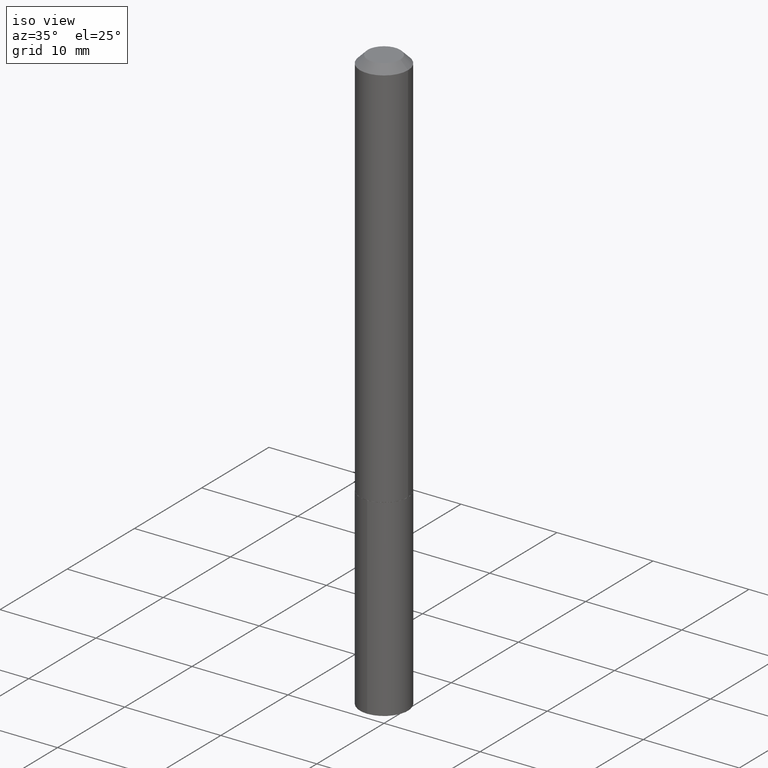
[diagram: clean part render]
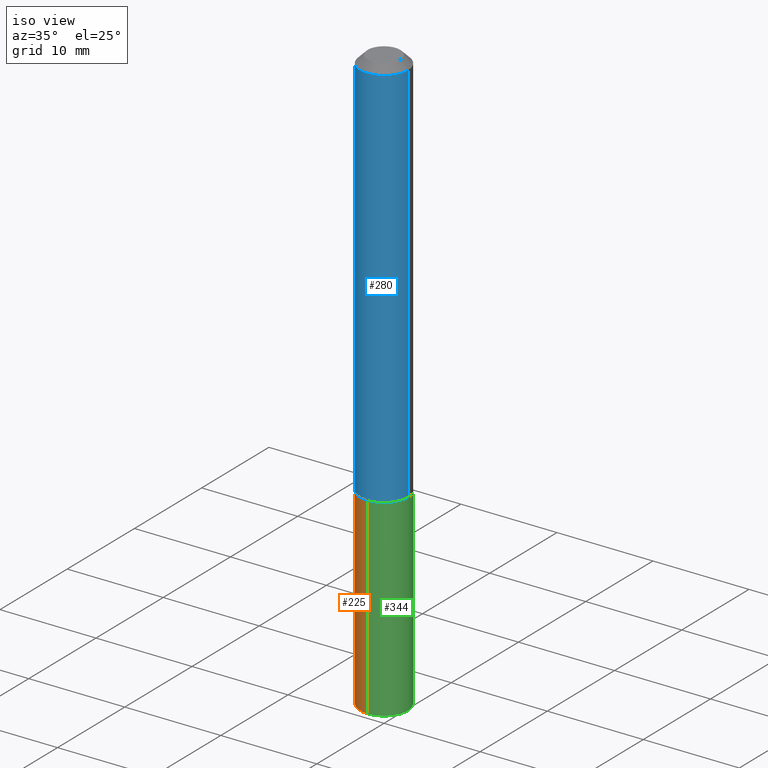
[diagram: same view with three faces highlighted in distinct colors, each labeled with its STEP entity id]
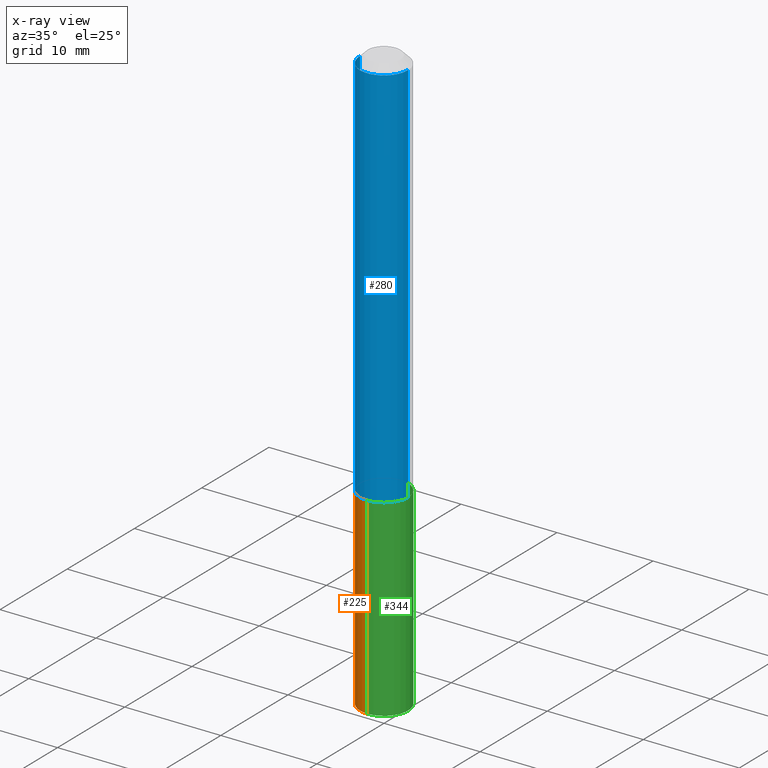
[diagram: x-ray of the same camera — body ghosted, the three highlighted faces saturated]
A machine part, iso view with three faces highlighted in distinct colors.
The next image is the same camera in x-ray (body ghosted, the three faces saturated) — at least one of them is partly hidden behind the body in this view.
Their STEP definitions:

[orange] entity #225 — the highlighted cylindrical surface (edge-blend (fillet) strip) has radius 2.5006 mm, axis along (-0, 0, 1).
#10 = ORIENTED_EDGE ( 'NONE', *, *, #339, .T. ) ;
#25 = DIRECTION ( 'NONE',  ( -2.446042122429912463E-29, 3.490660317349492585E-15, 1.000000000000000000 ) ) ;
#28 = CARTESIAN_POINT ( 'NONE',  ( -6.874726756181734128E-16, -0.09845000000000563023, -1.614199999999999635 ) ) ;
#30 = DIRECTION ( 'NONE',  ( -6.982962677686265922E-15, -1.000000000000000000, 2.774858297271979165E-15 ) ) ;
#31 = LINE ( 'NONE', #28, #279 ) ;
#60 = CYLINDRICAL_SURFACE ( 'NONE', #66, 0.09844999999999999585 ) ;
#66 = AXIS2_PLACEMENT_3D ( 'NONE', #300, #264, #206 ) ;
#82 = VERTEX_POINT ( 'NONE', #183 ) ;
#84 = EDGE_CURVE ( 'NONE', #229, #105, #174, .T. ) ;
#97 = DIRECTION ( 'NONE',  ( -2.446042122429912463E-29, 3.490660317349492979E-15, 1.000000000000000000 ) ) ;
#98 = CARTESIAN_POINT ( 'NONE',  ( 5.881970061236980802E-29, -8.396597685671335252E-15, -2.405067130436492562 ) ) ;
#102 = ORIENTED_EDGE ( 'NONE', *, *, #193, .F. ) ;
#105 = VERTEX_POINT ( 'NONE', #388 ) ;
#116 = VERTEX_POINT ( 'NONE', #215 ) ;
#152 = AXIS2_PLACEMENT_3D ( 'NONE', #98, #305, #30 ) ;
#158 = DIRECTION ( 'NONE',  ( -6.982962677686265922E-15, -1.000000000000000000, 2.774858297271979165E-15 ) ) ;
#159 = EDGE_CURVE ( 'NONE', #116, #82, #278, .T. ) ;
#174 = CIRCLE ( 'NONE', #247, 0.09844999999999999585 ) ;
#183 = CARTESIAN_POINT ( 'NONE',  ( -6.874726756181539871E-16, -0.09845000000000836415, -2.405067130436492562 ) ) ;
#186 = CARTESIAN_POINT ( 'NONE',  ( 6.995293233558774722E-16, 0.09844999999999436147, -1.614200000000000301 ) ) ;
#191 = CARTESIAN_POINT ( 'NONE',  ( 3.947475746944047390E-29, -5.635949177160606158E-15, -1.614199999999999857 ) ) ;
#193 = EDGE_CURVE ( 'NONE', #116, #229, #267, .T. ) ;
#206 = DIRECTION ( 'NONE',  ( -6.982962677686265922E-15, -1.000000000000000000, 2.774858297271979165E-15 ) ) ;
#215 = CARTESIAN_POINT ( 'NONE',  ( 6.995293233558771764E-16, 0.09844999999999157203, -2.405067130436493006 ) ) ;
#217 = EDGE_LOOP ( 'NONE', ( #102, #257, #10, #340 ) ) ;
#223 = VECTOR ( 'NONE', #97, 39.37007874015748143 ) ;
#225 = ADVANCED_FACE ( 'NONE', ( #235 ), #60, .T. ) ;
#229 = VERTEX_POINT ( 'NONE', #186 ) ;
#235 = FACE_OUTER_BOUND ( 'NONE', #217, .T. ) ;
#247 = AXIS2_PLACEMENT_3D ( 'NONE', #191, #25, #158 ) ;
#257 = ORIENTED_EDGE ( 'NONE', *, *, #159, .T. ) ;
#264 = DIRECTION ( 'NONE',  ( -2.446042122429912463E-29, 3.490660317349492585E-15, 1.000000000000000000 ) ) ;
#267 = LINE ( 'NONE', #269, #223 ) ;
#269 = CARTESIAN_POINT ( 'NONE',  ( 6.995293233558578493E-16, 0.09844999999999436147, -1.614200000000000301 ) ) ;
#270 = DIRECTION ( 'NONE',  ( -2.446042122429912463E-29, 3.490660317349492979E-15, 1.000000000000000000 ) ) ;
#278 = CIRCLE ( 'NONE', #152, 0.09844999999999999585 ) ;
#279 = VECTOR ( 'NONE', #270, 39.37007874015748143 ) ;
#300 = CARTESIAN_POINT ( 'NONE',  ( 3.947475746944047390E-29, -5.635949177160606158E-15, -1.614199999999999857 ) ) ;
#305 = DIRECTION ( 'NONE',  ( -2.446042122429912463E-29, 3.490660317349492585E-15, 1.000000000000000000 ) ) ;
#339 = EDGE_CURVE ( 'NONE', #82, #105, #31, .T. ) ;
#340 = ORIENTED_EDGE ( 'NONE', *, *, #84, .F. ) ;
#388 = CARTESIAN_POINT ( 'NONE',  ( -6.874726756181734128E-16, -0.09845000000000563023, -1.614199999999999635 ) ) ;

[blue] entity #280 — the highlighted cylindrical surface (edge-blend (fillet) strip) has radius 2.5006 mm, axis along (-0, 0, 1).
#2 = CARTESIAN_POINT ( 'NONE',  ( 0.09845000000000020401, -6.321676112109399581E-15, -1.613700000000000134 ) ) ;
#20 = VERTEX_POINT ( 'NONE', #326 ) ;
#21 = VECTOR ( 'NONE', #322, 39.37007874015748143 ) ;
#23 = CARTESIAN_POINT ( 'NONE',  ( 0.000000000000000000, 0.000000000000000000, 0.000000000000000000 ) ) ;
#36 = VERTEX_POINT ( 'NONE', #2 ) ;
#54 = CARTESIAN_POINT ( 'NONE',  ( 3.946253012540955150E-29, -5.634203436491184654E-15, -1.613700000000000134 ) ) ;
#57 = VECTOR ( 'NONE', #232, 39.37007874015748143 ) ;
#70 = DIRECTION ( 'NONE',  ( -2.445468806185136597E-29, 3.491481338843145583E-15, 1.000000000000000000 ) ) ;
#75 = LINE ( 'NONE', #197, #21 ) ;
#93 = AXIS2_PLACEMENT_3D ( 'NONE', #54, #184, #236 ) ;
#94 = DIRECTION ( 'NONE',  ( -2.445468806185136597E-29, 3.491481338843145583E-15, 1.000000000000000000 ) ) ;
#117 = CIRCLE ( 'NONE', #334, 0.09845000000000000973 ) ;
#119 = CARTESIAN_POINT ( 'NONE',  ( -0.09845000000000010687, 6.995293233558193923E-16, -4.842691596355960348E-30 ) ) ;
#128 = CARTESIAN_POINT ( 'NONE',  ( -0.09845000000000020401, -4.934674113135364966E-15, -1.613700000000000134 ) ) ;
#140 = CARTESIAN_POINT ( 'NONE',  ( 7.642090019328604414E-31, -1.091087918388490513E-16, -0.03125000000000021511 ) ) ;
#168 = EDGE_CURVE ( 'NONE', #348, #20, #117, .T. ) ;
#177 = EDGE_CURVE ( 'NONE', #36, #20, #75, .T. ) ;
#184 = DIRECTION ( 'NONE',  ( -2.445468806185136597E-29, 3.491481338843145583E-15, 1.000000000000000000 ) ) ;
#197 = CARTESIAN_POINT ( 'NONE',  ( 0.09845000000000010687, -6.874726756182137434E-16, 4.800596035771104119E-30 ) ) ;
#211 = EDGE_CURVE ( 'NONE', #287, #36, #255, .T. ) ;
#220 = ORIENTED_EDGE ( 'NONE', *, *, #168, .F. ) ;
#232 = DIRECTION ( 'NONE',  ( -2.445468806185136877E-29, 3.491481338843145188E-15, 1.000000000000000000 ) ) ;
#236 = DIRECTION ( 'NONE',  ( 1.000000000000000000, -6.982962677686269866E-15, 0.000000000000000000 ) ) ;
#242 = CYLINDRICAL_SURFACE ( 'NONE', #304, 0.09845000000000010687 ) ;
#244 = DIRECTION ( 'NONE',  ( 1.000000000000000000, -6.982962677686267499E-15, 4.876176775795935793E-29 ) ) ;
#255 = CIRCLE ( 'NONE', #93, 0.09845000000000020401 ) ;
#260 = EDGE_CURVE ( 'NONE', #287, #348, #262, .T. ) ;
#262 = LINE ( 'NONE', #119, #57 ) ;
#276 = ORIENTED_EDGE ( 'NONE', *, *, #177, .T. ) ;
#280 = ADVANCED_FACE ( 'NONE', ( #335 ), #242, .T. ) ;
#287 = VERTEX_POINT ( 'NONE', #128 ) ;
#304 = AXIS2_PLACEMENT_3D ( 'NONE', #23, #94, #244 ) ;
#321 = EDGE_LOOP ( 'NONE', ( #360, #349, #276, #220 ) ) ;
#322 = DIRECTION ( 'NONE',  ( -2.445468806185136877E-29, 3.491481338843145188E-15, 1.000000000000000000 ) ) ;
#323 = CARTESIAN_POINT ( 'NONE',  ( -0.09845000000000000973, -2.172126790809196006E-15, -0.03125000000000021511 ) ) ;
#326 = CARTESIAN_POINT ( 'NONE',  ( 0.09845000000000000973, -7.965814674570621538E-16, -0.03125000000000021511 ) ) ;
#334 = AXIS2_PLACEMENT_3D ( 'NONE', #140, #70, #353 ) ;
#335 = FACE_OUTER_BOUND ( 'NONE', #321, .T. ) ;
#348 = VERTEX_POINT ( 'NONE', #323 ) ;
#349 = ORIENTED_EDGE ( 'NONE', *, *, #211, .T. ) ;
#353 = DIRECTION ( 'NONE',  ( 1.000000000000000000, -6.982962677686266711E-15, 0.000000000000000000 ) ) ;
#360 = ORIENTED_EDGE ( 'NONE', *, *, #260, .F. ) ;

[green] entity #344 — the highlighted cylindrical surface (edge-blend (fillet) strip) has radius 2.5006 mm, axis along (-0, 0, 1).
#1 = FACE_OUTER_BOUND ( 'NONE', #251, .T. ) ;
#3 = DIRECTION ( 'NONE',  ( -6.982962677686265922E-15, -1.000000000000000000, 2.774858297271979165E-15 ) ) ;
#28 = CARTESIAN_POINT ( 'NONE',  ( -6.874726756181734128E-16, -0.09845000000000563023, -1.614199999999999635 ) ) ;
#31 = LINE ( 'NONE', #28, #279 ) ;
#67 = CARTESIAN_POINT ( 'NONE',  ( 3.947475746944047390E-29, -5.635949177160606158E-15, -1.614199999999999857 ) ) ;
#82 = VERTEX_POINT ( 'NONE', #183 ) ;
#87 = AXIS2_PLACEMENT_3D ( 'NONE', #245, #273, #299 ) ;
#89 = ORIENTED_EDGE ( 'NONE', *, *, #113, .T. ) ;
#97 = DIRECTION ( 'NONE',  ( -2.446042122429912463E-29, 3.490660317349492979E-15, 1.000000000000000000 ) ) ;
#105 = VERTEX_POINT ( 'NONE', #388 ) ;
#106 = DIRECTION ( 'NONE',  ( -2.446042122429912463E-29, 3.490660317349492585E-15, 1.000000000000000000 ) ) ;
#108 = CARTESIAN_POINT ( 'NONE',  ( 3.947475746944047390E-29, -5.635949177160606158E-15, -1.614199999999999857 ) ) ;
#113 = EDGE_CURVE ( 'NONE', #82, #116, #313, .T. ) ;
#116 = VERTEX_POINT ( 'NONE', #215 ) ;
#129 = DIRECTION ( 'NONE',  ( -6.982962677686265922E-15, -1.000000000000000000, 2.774858297271979165E-15 ) ) ;
#139 = AXIS2_PLACEMENT_3D ( 'NONE', #108, #106, #129 ) ;
#153 = AXIS2_PLACEMENT_3D ( 'NONE', #67, #162, #3 ) ;
#162 = DIRECTION ( 'NONE',  ( -2.446042122429912463E-29, 3.490660317349492585E-15, 1.000000000000000000 ) ) ;
#183 = CARTESIAN_POINT ( 'NONE',  ( -6.874726756181539871E-16, -0.09845000000000836415, -2.405067130436492562 ) ) ;
#186 = CARTESIAN_POINT ( 'NONE',  ( 6.995293233558774722E-16, 0.09844999999999436147, -1.614200000000000301 ) ) ;
#193 = EDGE_CURVE ( 'NONE', #116, #229, #267, .T. ) ;
#213 = CYLINDRICAL_SURFACE ( 'NONE', #153, 0.09844999999999999585 ) ;
#215 = CARTESIAN_POINT ( 'NONE',  ( 6.995293233558771764E-16, 0.09844999999999157203, -2.405067130436493006 ) ) ;
#223 = VECTOR ( 'NONE', #97, 39.37007874015748143 ) ;
#229 = VERTEX_POINT ( 'NONE', #186 ) ;
#245 = CARTESIAN_POINT ( 'NONE',  ( 5.881970061236980802E-29, -8.396597685671335252E-15, -2.405067130436492562 ) ) ;
#251 = EDGE_LOOP ( 'NONE', ( #89, #253, #383, #345 ) ) ;
#253 = ORIENTED_EDGE ( 'NONE', *, *, #193, .T. ) ;
#267 = LINE ( 'NONE', #269, #223 ) ;
#269 = CARTESIAN_POINT ( 'NONE',  ( 6.995293233558578493E-16, 0.09844999999999436147, -1.614200000000000301 ) ) ;
#270 = DIRECTION ( 'NONE',  ( -2.446042122429912463E-29, 3.490660317349492979E-15, 1.000000000000000000 ) ) ;
#273 = DIRECTION ( 'NONE',  ( -2.446042122429912463E-29, 3.490660317349492585E-15, 1.000000000000000000 ) ) ;
#279 = VECTOR ( 'NONE', #270, 39.37007874015748143 ) ;
#299 = DIRECTION ( 'NONE',  ( -6.982962677686265922E-15, -1.000000000000000000, 2.774858297271979165E-15 ) ) ;
#313 = CIRCLE ( 'NONE', #87, 0.09844999999999999585 ) ;
#339 = EDGE_CURVE ( 'NONE', #82, #105, #31, .T. ) ;
#344 = ADVANCED_FACE ( 'NONE', ( #1 ), #213, .T. ) ;
#345 = ORIENTED_EDGE ( 'NONE', *, *, #339, .F. ) ;
#383 = ORIENTED_EDGE ( 'NONE', *, *, #389, .F. ) ;
#385 = CIRCLE ( 'NONE', #139, 0.09844999999999999585 ) ;
#388 = CARTESIAN_POINT ( 'NONE',  ( -6.874726756181734128E-16, -0.09845000000000563023, -1.614199999999999635 ) ) ;
#389 = EDGE_CURVE ( 'NONE', #105, #229, #385, .T. ) ;